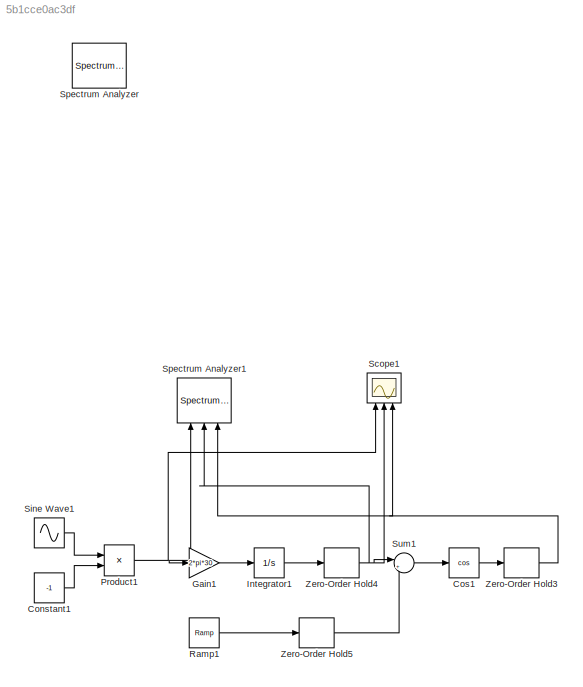
MODEL slx_5b1cce0ac3df
KIND model
CONFIG AbsTol = auto
CONFIG EnableMultiTasking = off
CONFIG FixedStep = auto
CONFIG MaxStep = auto
CONFIG MinStep = auto
CONFIG RelTol = 1e-3
CONFIG SampleTimeConstraint = Unconstrained
CONFIG SolverName = VariableStepAuto
CONFIG StartTime = 0.0
CONFIG StopTime = 10.0
BLOCK [Constant] Constant1
  SampleTime = 0.0001
  Value = -1
BLOCK [Trigonometry] Cos1
  Operator = cos
  OutputSignalType = real
  Ports = [1, 1]
BLOCK [Gain] Gain1
  Gain = 2*pi*30
BLOCK [Integrator] Integrator1
  Ports = [1, 1]
BLOCK [Product] Product1
  Ports = [2, 1]
BLOCK [Reference] Ramp1  REF=simulink/Sources/Ramp
  Ports = [0, 1]
  SourceBlock = simulink/Sources/Ramp
  SourceProductBaseCode = SL
  SourceType = Ramp
BLOCK [Scope] Scope1
  Floating = off
  NameLocation = right
  NumInputPorts = 3
  Ports = [3]
  ScopeSpecificationString = Simulink.scopes.TimeScopeBlockCfg('CurrentConfiguration', extmgr.ConfigurationSet(extmgr.Configuration('Core','General UI',true,'FigureColor',[1 1 1]),extmgr.Configuration('Core','Source UI',true),extmgr.Configuration('Sources','WiredSimulink',true,'DataLoggingVariableName','ScopeData1'),extmgr.Configuration('Visuals','Time Domain',true,'SerializedDisplays',{struct('MinYLimReal','-1.47489','MaxYLi...<+1782ch>
BLOCK [Sin] Sine Wave1
  Frequency = 2*pi*50
  Ports = [0, 1]
  SampleTime = 0.00001
BLOCK [SpectrumAnalyzer] Spectrum Analyzer
  Commented = on
  NameLocation = right
  NumInputPorts = 3
  Ports = [3]
  ScopeSpecificationString = spbscopes.SpectrumAnalyzerBlockCfg('CurrentConfiguration', extmgr.ConfigurationSet(extmgr.Configuration('Core','General UI',true,'FigureColor',[1 1 1]),extmgr.Configuration('Core','Source UI',true),extmgr.Configuration('Sources','WiredSimulink',true),extmgr.Configuration('Visuals','Spectrum',true,'AxesProperties',struct('Color',{[1 1 1],[1 1 1]},'XColor',{[0 0 0],[0 0 0]},'YColor',{[0 0 0],[0 0 0]...<+1922ch>
BLOCK [SpectrumAnalyzer] Spectrum Analyzer1
  NameLocation = right
  NumInputPorts = 3
  Ports = [3]
  ScopeSpecificationString = spbscopes.SpectrumAnalyzerBlockCfg('CurrentConfiguration', extmgr.ConfigurationSet(extmgr.Configuration('Core','General UI',true,'FigureColor',[1 1 1]),extmgr.Configuration('Core','Source UI',true),extmgr.Configuration('Sources','WiredSimulink',true),extmgr.Configuration('Visuals','Spectrum',true,'AxesProperties',struct('Color',{[1 1 1],[1 1 1]},'XColor',{[0 0 0],[0 0 0]},'YColor',{[0 0 0],[0 0 0]...<+2087ch>
BLOCK [Sum] Sum1
  Inputs = |++
  Ports = [2, 1]
BLOCK [ZeroOrderHold] Zero-Order Hold3
  SampleTime = 0.00001
BLOCK [ZeroOrderHold] Zero-Order Hold4
  SampleTime = 0.00001
BLOCK [ZeroOrderHold] Zero-Order Hold5
  SampleTime = 0.00001
LINE Constant1:1 -> Product1:2
LINE Cos1:1 -> Zero-Order Hold3:1
LINE Gain1:1 -> Integrator1:1
LINE Integrator1:1 -> Zero-Order Hold4:1
NET Product1:1 -> Gain1:1, Scope1:1, Spectrum Analyzer1:1
LINE Ramp1:1 -> Zero-Order Hold5:1
LINE Sine Wave1:1 -> Product1:1
LINE Sum1:1 -> Cos1:1
NET Zero-Order Hold3:1 -> Scope1:3, Spectrum Analyzer1:3
NET Zero-Order Hold4:1 -> Scope1:2, Spectrum Analyzer1:2, Sum1:1
LINE Zero-Order Hold5:1 -> Sum1:2
note: NET lines group one-source signal fan-out (src -> all destinations, sorted); 1:1 wires keep LINE
